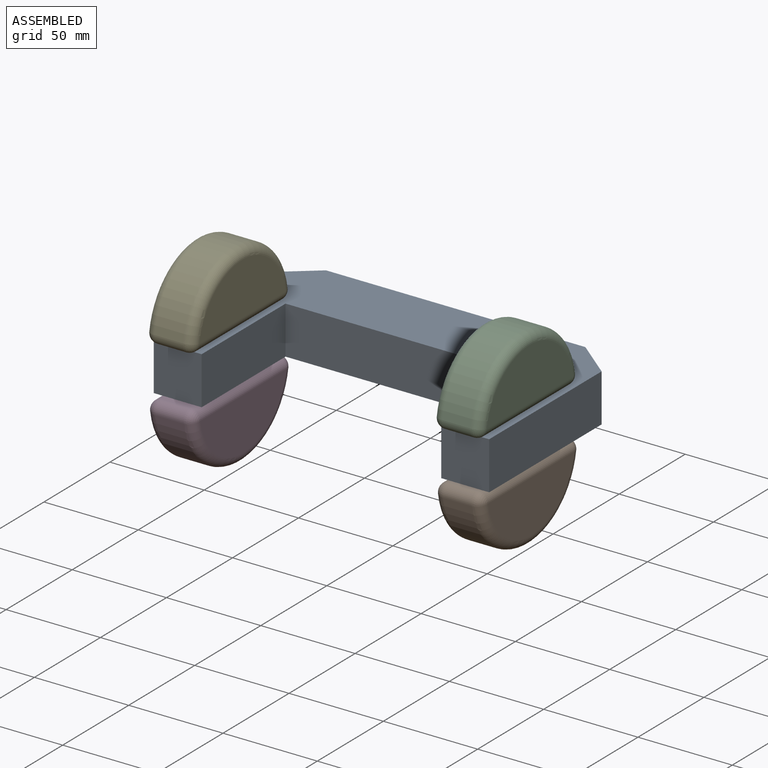
[diagram: assembled view]
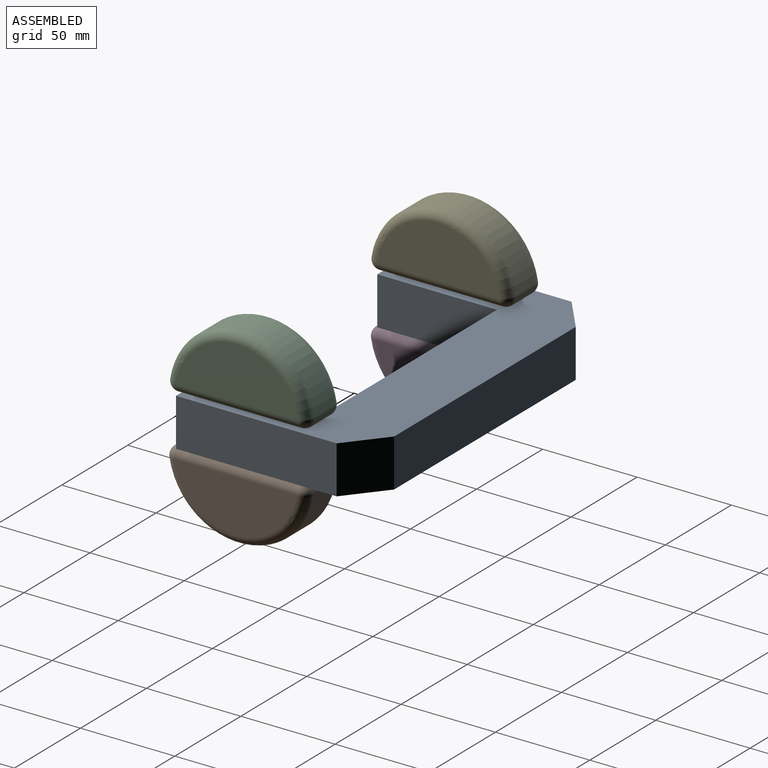
[diagram: assembled view, second angle]
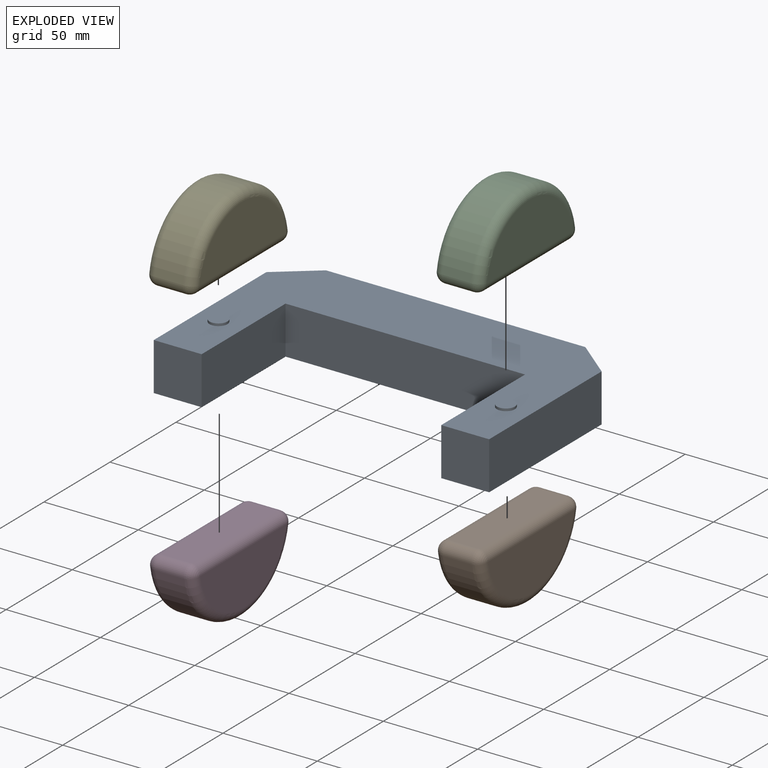
[diagram: exploded view]
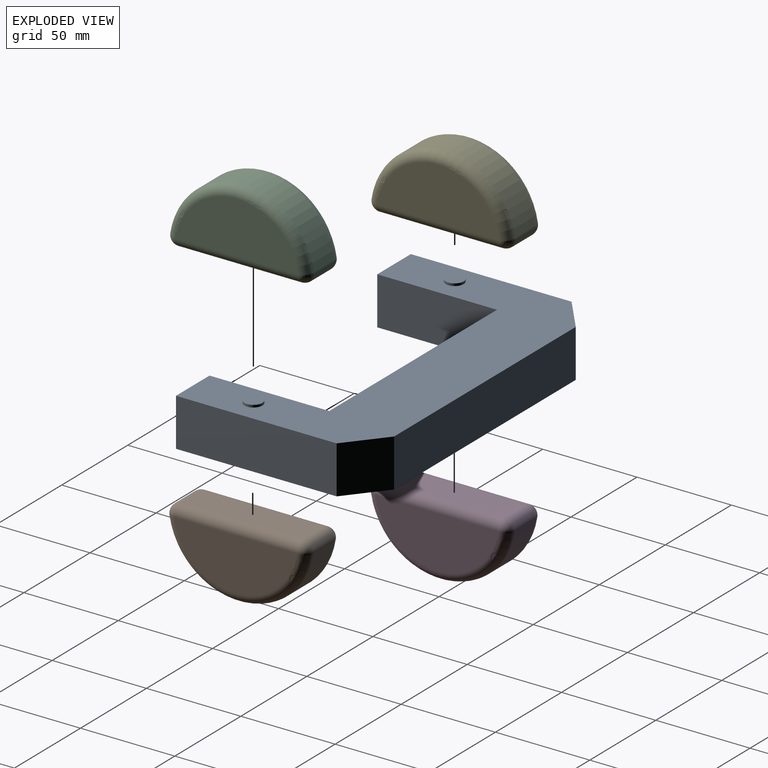
[diagram: exploded view, second angle]
ASSEMBLY  parts=5 mates=4
PART A: 20 faces, bbox 177.8x101.6x27.9 mm
  f0: plane 63.5x25.4mm, normal (1,0,0), area 1612.9mm2, adj f1,f7,f8,f9
  f1: plane 127x25.4mm, normal (0,-1,0), area 3225.8mm2, adj f0,f2,f8,f9
  f2: plane 63.5x25.4mm, normal (-1,0,0), area 1612.9mm2, adj f1,f3,f8,f9
  f3: plane 25.4x25.4mm, normal (0,-1,0), area 645.2mm2, adj f2,f4,f8,f9
  f4: plane 85.2x25.4mm, normal (1,0,0), area 2164.2mm2, adj f3,f8,f9,f11
  f5: plane 137.55x25.4mm, normal (0,1,0), area 3493.8mm2, adj f8,f9,f10,f11
  f6: plane 85.25x25.4mm, normal (-1,0,0), area 2165.4mm2, adj f7,f8,f9,f10
  f7: plane 25.4x25.4mm, normal (0,-1,0), area 645.2mm2, adj f0,f6,f8,f9
  f8: plane 177.8x101.6mm, normal (0,0,1), area 9528mm2, adj f0,f1,f2,f3,f4,f5,f6,f7
  f9: plane 177.8x101.6mm, normal (0,0,-1), area 9528mm2, adj f0,f1,f2,f3,f4,f5,f6,f7
  f10: plane 25.4x20.17mm, normal (-0.63,0.78,0), area 659.5mm2, adj f5,f6,f8,f9
  f11: plane 25.4x20.08mm, normal (0.63,0.77,0), area 658.4mm2, adj f4,f5,f8,f9
  f12: cylinder r=4.76mm len=9.53mm, axis (0,0,-1), area 38mm2, adj f8,f13
  f13: plane 9.53x9.53mm, normal (0,0,1), area 71.3mm2, adj f12
  f14: cylinder r=4.76mm len=9.53mm, axis (0,0,-1), area 38mm2, adj f8,f15
  f15: plane 9.53x9.53mm, normal (0,0,1), area 71.3mm2, adj f14
  f16: cylinder r=4.76mm len=9.53mm, axis (0,0,1), area 38mm2, adj f9,f17
  f17: plane 9.53x9.53mm, normal (0,0,-1), area 71.3mm2, adj f16
  f18: cylinder r=4.76mm len=9.53mm, axis (0,0,1), area 38mm2, adj f9,f19
  f19: plane 9.53x9.53mm, normal (0,0,-1), area 71.3mm2, adj f18
PART B: 14 faces, bbox 41.2x81.5x25.4 mm
  f0: cylinder r=38.1mm len=75.29mm, axis (0,0,-1), area 1644.8mm2, adj f4,f8,f9,f13
  f1: plane 65.25x27.94mm, normal (0,0,1), area 1378.5mm2, adj f7,f8
  f2: plane 65.25x27.94mm, normal (0,0,-1), area 1378.5mm2, adj f9,f10
  f3: plane 65.25x15.24mm, normal (1,0,0), area 994.5mm2, adj f4,f7,f10,f13
  f4: cylinder r=5.08mm len=15.24mm, axis (0,0,-1), area 133.6mm2, adj f0,f3,f5,f6
  f5: sphere r=5.08mm, area 44.5mm2, adj f4,f7,f8
  f6: sphere r=5.08mm, area 44.5mm2, adj f4,f9,f10
  f7: cylinder r=5.08mm len=65.25mm, axis (0,1,0), area 520.7mm2, adj f1,f3,f5,f11
  f8: torus R=33.02mm, axis (0,0,1), area 819.5mm2, adj f0,f1,f5,f11
  f9: torus R=33.02mm, axis (0,0,1), area 819.5mm2, adj f0,f2,f6,f12
  f10: cylinder r=5.08mm len=65.25mm, axis (0,-1,0), area 520.7mm2, adj f2,f3,f6,f12
  f11: sphere r=5.08mm, area 44.5mm2, adj f7,f8,f13
  f12: sphere r=5.08mm, area 44.5mm2, adj f9,f10,f13
  f13: cylinder r=5.08mm len=15.24mm, axis (0,0,-1), area 133.6mm2, adj f0,f3,f11,f12
PART C: same geometry as B
PART D: same geometry as B
PART E: same geometry as B
PLACE A t=(1.51,12.28,1.75)mm
PLACE B rot(axis=(0,-1,0),90deg) t=(96.74,-4.89,1.75)mm
PLACE C rot(axis=(0.71,0,-0.71),180deg) t=(96.11,-4.89,27.15)mm
PLACE D rot(axis=(0,-1,0),90deg) t=(-55.88,-4.89,0.48)mm
PLACE E rot(axis=(0.71,0,-0.71),180deg) t=(-56.3,-4.89,27.15)mm
MATE fastened C.f3 <-> A.f14  axis (0,0,-1) through (83.41,-4.89,27.15)mm
MATE fastened E.f3 <-> A.f12  axis (0,0,-1) through (-69,-4.89,27.15)mm
MATE fastened D.f3 <-> A.f16  axis (0,0,1) through (-68.58,-4.89,0.48)mm
MATE fastened B.f3 <-> A.f18  axis (0,0,1) through (84.04,-4.89,1.75)mm
